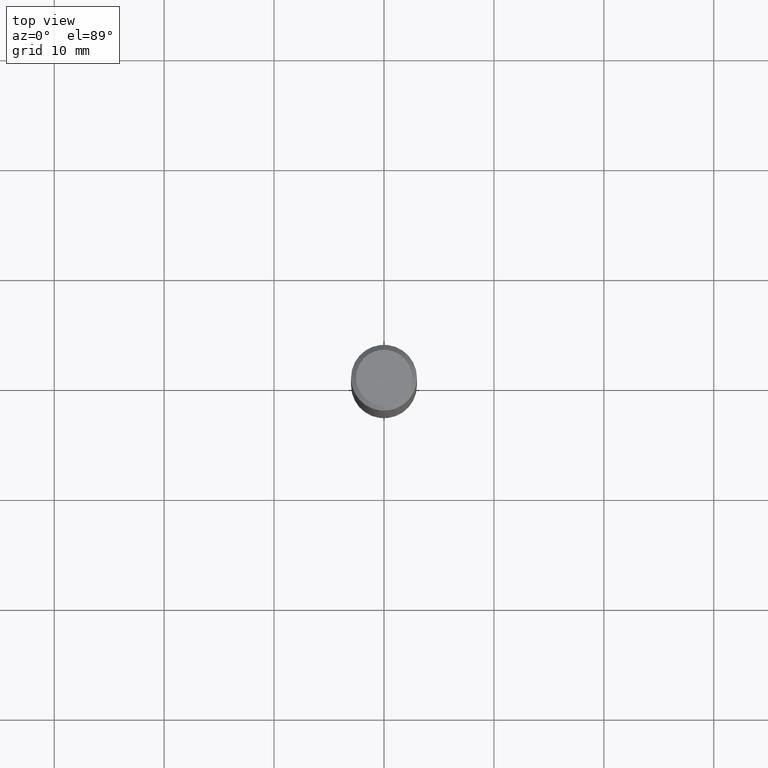
[diagram: clean part render]
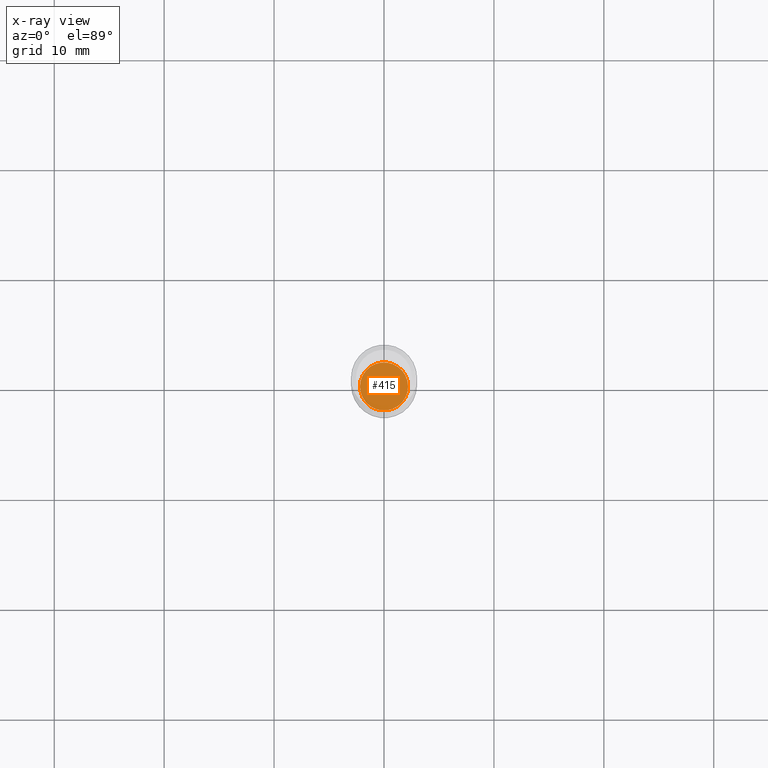
[diagram: x-ray — body ghosted, one internal face saturated and labeled with its STEP entity id]
A machine part, top view, then the same camera in x-ray: the body is ghosted and one INTERNAL B-rep face — a face not visible from any outside direction — is saturated and labeled: STEP entity #415.
In plain terms, the highlighted planar face has unit normal (-0, 0, 1).
Its self-contained STEP definition (entity closure, byte-faithful):
#19 = VERTEX_POINT ( 'NONE', #361 ) ;
#37 = PLANE ( 'NONE',  #216 ) ;
#43 = DIRECTION ( 'NONE',  ( 1.000000000000000000, -6.982962677686264344E-15, 0.000000000000000000 ) ) ;
#69 = CIRCLE ( 'NONE', #81, 0.08609999999999996823 ) ;
#81 = AXIS2_PLACEMENT_3D ( 'NONE', #141, #473, #317 ) ;
#82 = DIRECTION ( 'NONE',  ( -2.445468806185136597E-29, 3.491481338843145583E-15, 1.000000000000000000 ) ) ;
#85 = FACE_OUTER_BOUND ( 'NONE', #247, .T. ) ;
#141 = CARTESIAN_POINT ( 'NONE',  ( 4.467137868258388805E-29, -6.377888961664773574E-15, -1.826699999999999990 ) ) ;
#145 = ORIENTED_EDGE ( 'NONE', *, *, #268, .F. ) ;
#168 = CIRCLE ( 'NONE', #172, 0.08609999999999996823 ) ;
#172 = AXIS2_PLACEMENT_3D ( 'NONE', #375, #82, #43 ) ;
#188 = DIRECTION ( 'NONE',  ( -2.438088387897960049E-29, 3.491481338843145188E-15, 1.000000000000000000 ) ) ;
#201 = DIRECTION ( 'NONE',  ( 1.000000000000000000, -6.982962677686265922E-15, 4.876176775795935793E-29 ) ) ;
#216 = AXIS2_PLACEMENT_3D ( 'NONE', #234, #188, #201 ) ;
#223 = CARTESIAN_POINT ( 'NONE',  ( 0.08609999999999996823, -6.979122048213560702E-15, -1.826699999999999990 ) ) ;
#234 = CARTESIAN_POINT ( 'NONE',  ( 4.467137868258388805E-29, -6.377888961664773574E-15, -1.826699999999999990 ) ) ;
#247 = EDGE_LOOP ( 'NONE', ( #360, #145 ) ) ;
#268 = EDGE_CURVE ( 'NONE', #19, #377, #69, .T. ) ;
#317 = DIRECTION ( 'NONE',  ( 1.000000000000000000, -6.982962677686264344E-15, 0.000000000000000000 ) ) ;
#360 = ORIENTED_EDGE ( 'NONE', *, *, #371, .F. ) ;
#361 = CARTESIAN_POINT ( 'NONE',  ( -0.08609999999999996823, -5.763462439001217226E-15, -1.826699999999999990 ) ) ;
#371 = EDGE_CURVE ( 'NONE', #377, #19, #168, .T. ) ;
#375 = CARTESIAN_POINT ( 'NONE',  ( 4.467137868258388805E-29, -6.377888961664773574E-15, -1.826699999999999990 ) ) ;
#377 = VERTEX_POINT ( 'NONE', #223 ) ;
#415 = ADVANCED_FACE ( 'NONE', ( #85 ), #37, .F. ) ;
#473 = DIRECTION ( 'NONE',  ( -2.445468806185136597E-29, 3.491481338843145583E-15, 1.000000000000000000 ) ) ;